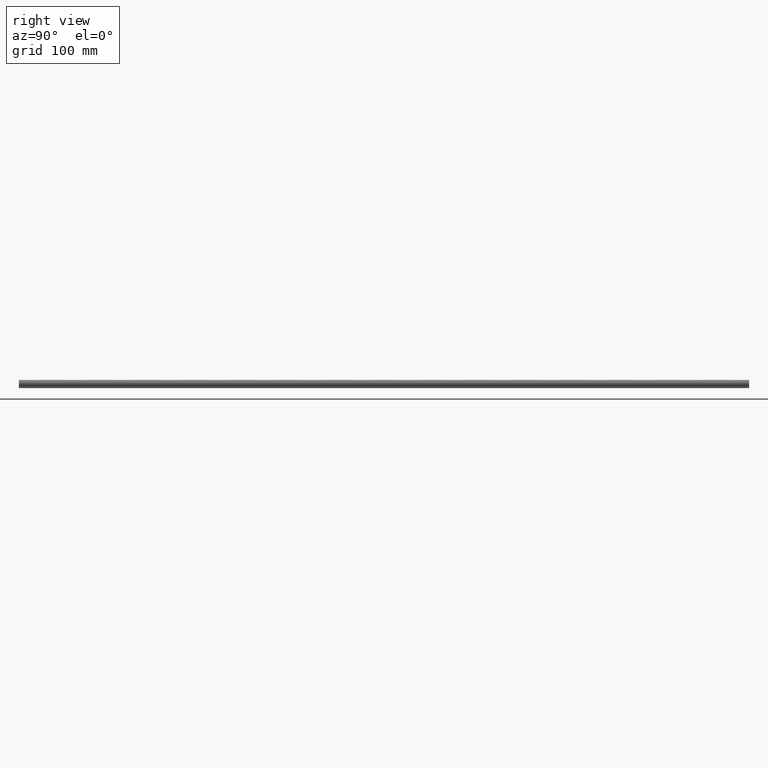
[diagram: clean part render]
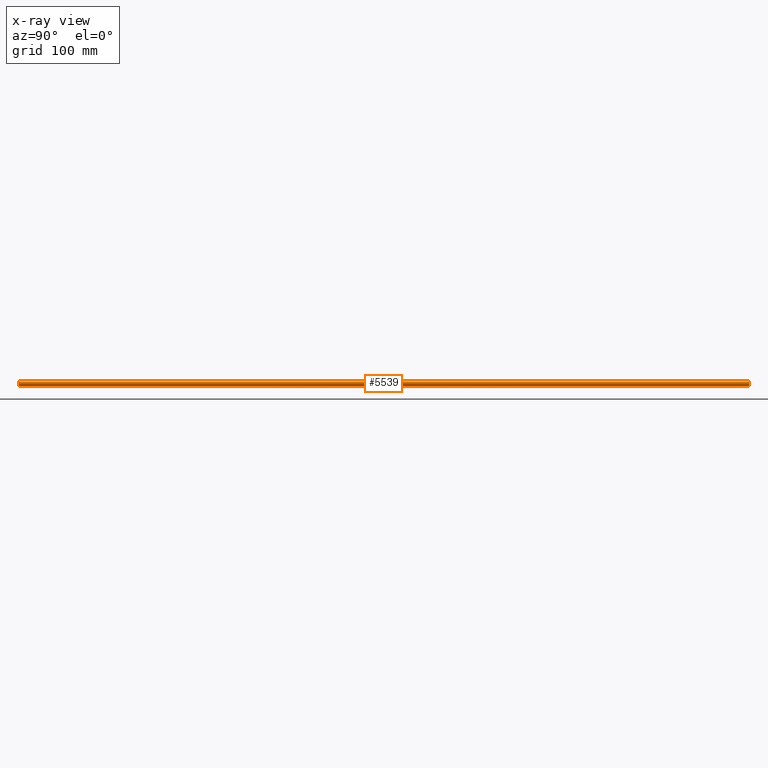
[diagram: x-ray — body ghosted, one internal face saturated and labeled with its STEP entity id]
A machine part, right view, then the same camera in x-ray: the body is ghosted and one INTERNAL B-rep face — a face not visible from any outside direction — is saturated and labeled: STEP entity #5539.
In plain terms, the highlighted cylindrical surface (edge-blend (fillet) strip) has radius 1.75 mm, axis along (0, 1, 0).
Its self-contained STEP definition (entity closure, byte-faithful):
#100 = ORIENTED_EDGE ( 'NONE', *, *, #368, .T. ) ;
#164 = AXIS2_PLACEMENT_3D ( 'NONE', #4717, #2111, #2039 ) ;
#368 = EDGE_CURVE ( 'NONE', #3225, #5337, #6534, .T. ) ;
#379 = ORIENTED_EDGE ( 'NONE', *, *, #3709, .F. ) ;
#755 = DIRECTION ( 'NONE',  ( 0.0000000000000000000, 1.000000000000000000, 0.0000000000000000000 ) ) ;
#1075 = LINE ( 'NONE', #2902, #2300 ) ;
#1102 = CARTESIAN_POINT ( 'NONE',  ( 2.143131898507868100E-016, 584.2000000000000500, -1.749999999999999800 ) ) ;
#1339 = DIRECTION ( 'NONE',  ( 0.0000000000000000000, 1.000000000000000000, 0.0000000000000000000 ) ) ;
#1512 = VECTOR ( 'NONE', #6125, 1000.000000000000000 ) ;
#1606 = ORIENTED_EDGE ( 'NONE', *, *, #2149, .F. ) ;
#1856 = CYLINDRICAL_SURFACE ( 'NONE', #5039, 1.749999999999999800 ) ;
#2035 = CARTESIAN_POINT ( 'NONE',  ( 0.0000000000000000000, -15.80000000000000100, 1.749999999999999800 ) ) ;
#2039 = DIRECTION ( 'NONE',  ( 0.0000000000000000000, 0.0000000000000000000, 1.000000000000000000 ) ) ;
#2111 = DIRECTION ( 'NONE',  ( 0.0000000000000000000, 1.000000000000000000, 0.0000000000000000000 ) ) ;
#2149 = EDGE_CURVE ( 'NONE', #3225, #2594, #4284, .T. ) ;
#2180 = FACE_OUTER_BOUND ( 'NONE', #3367, .T. ) ;
#2300 = VECTOR ( 'NONE', #1339, 1000.000000000000000 ) ;
#2594 = VERTEX_POINT ( 'NONE', #3715 ) ;
#2691 = DIRECTION ( 'NONE',  ( 0.0000000000000000000, 1.000000000000000000, 0.0000000000000000000 ) ) ;
#2902 = CARTESIAN_POINT ( 'NONE',  ( 2.143131898507868100E-016, -15.80000000000000100, -1.749999999999999800 ) ) ;
#3186 = AXIS2_PLACEMENT_3D ( 'NONE', #5798, #2691, #6320 ) ;
#3225 = VERTEX_POINT ( 'NONE', #2035 ) ;
#3367 = EDGE_LOOP ( 'NONE', ( #100, #6108, #379, #1606 ) ) ;
#3512 = EDGE_CURVE ( 'NONE', #5337, #5301, #1075, .T. ) ;
#3709 = EDGE_CURVE ( 'NONE', #2594, #5301, #6524, .T. ) ;
#3715 = CARTESIAN_POINT ( 'NONE',  ( 0.0000000000000000000, 584.2000000000000500, 1.749999999999999800 ) ) ;
#3874 = DIRECTION ( 'NONE',  ( 0.0000000000000000000, 0.0000000000000000000, 1.000000000000000000 ) ) ;
#4041 = CARTESIAN_POINT ( 'NONE',  ( 0.0000000000000000000, -15.80000000000000100, 1.749999999999999800 ) ) ;
#4284 = LINE ( 'NONE', #4041, #1512 ) ;
#4717 = CARTESIAN_POINT ( 'NONE',  ( 0.0000000000000000000, -15.80000000000000100, 0.0000000000000000000 ) ) ;
#4770 = CARTESIAN_POINT ( 'NONE',  ( 2.143131898507868100E-016, -15.80000000000000100, -1.749999999999999800 ) ) ;
#5039 = AXIS2_PLACEMENT_3D ( 'NONE', #6462, #755, #3874 ) ;
#5301 = VERTEX_POINT ( 'NONE', #1102 ) ;
#5337 = VERTEX_POINT ( 'NONE', #4770 ) ;
#5539 = ADVANCED_FACE ( 'NONE', ( #2180 ), #1856, .T. ) ;
#5798 = CARTESIAN_POINT ( 'NONE',  ( 0.0000000000000000000, 584.2000000000000500, 0.0000000000000000000 ) ) ;
#6108 = ORIENTED_EDGE ( 'NONE', *, *, #3512, .T. ) ;
#6125 = DIRECTION ( 'NONE',  ( 0.0000000000000000000, 1.000000000000000000, 0.0000000000000000000 ) ) ;
#6320 = DIRECTION ( 'NONE',  ( 0.0000000000000000000, 0.0000000000000000000, 1.000000000000000000 ) ) ;
#6462 = CARTESIAN_POINT ( 'NONE',  ( 0.0000000000000000000, -15.80000000000000100, 0.0000000000000000000 ) ) ;
#6524 = CIRCLE ( 'NONE', #3186, 1.749999999999999800 ) ;
#6534 = CIRCLE ( 'NONE', #164, 1.749999999999999800 ) ;